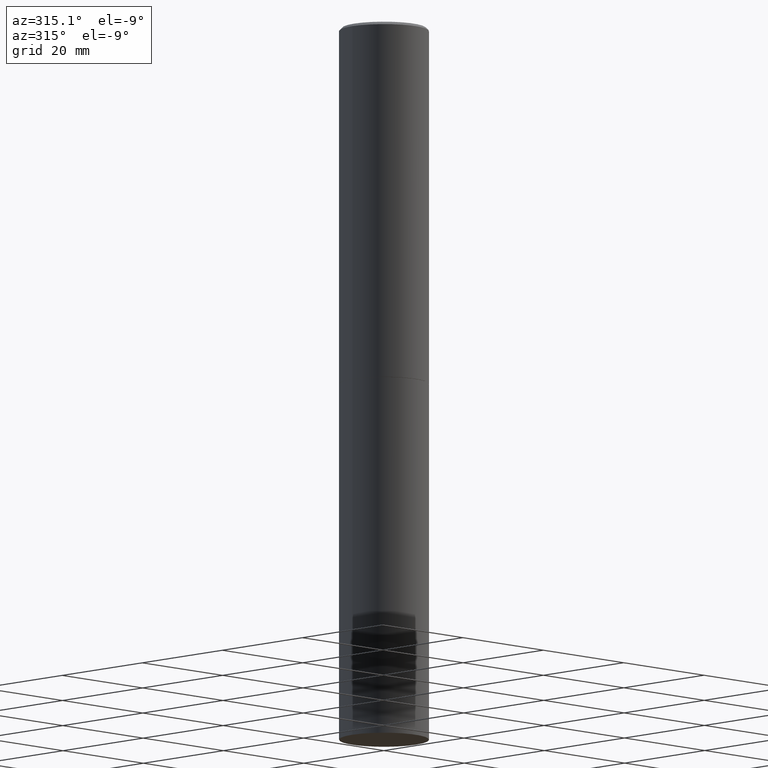
[diagram: clean part render]
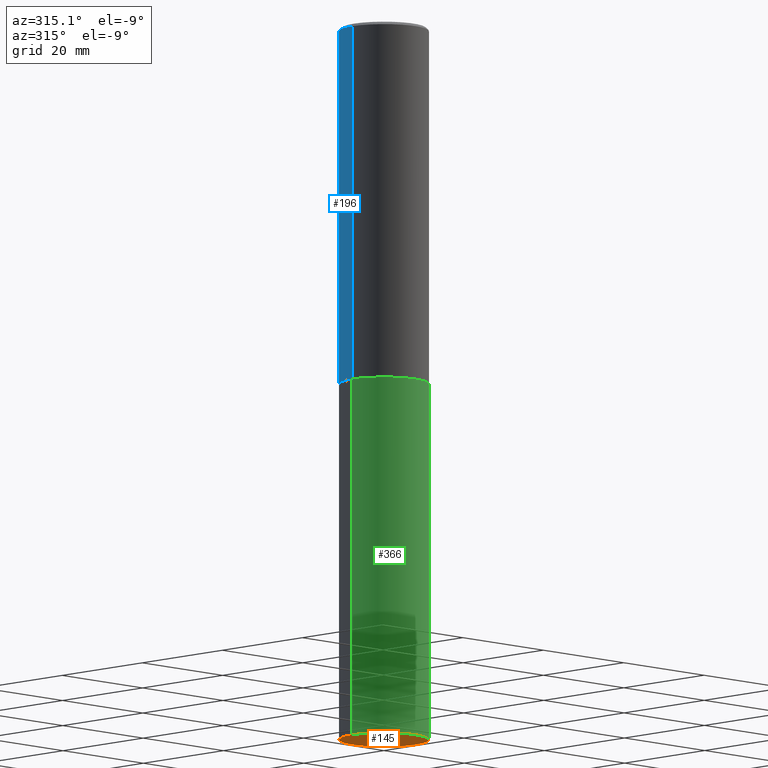
[diagram: same view with three faces highlighted in distinct colors, each labeled with its STEP entity id]
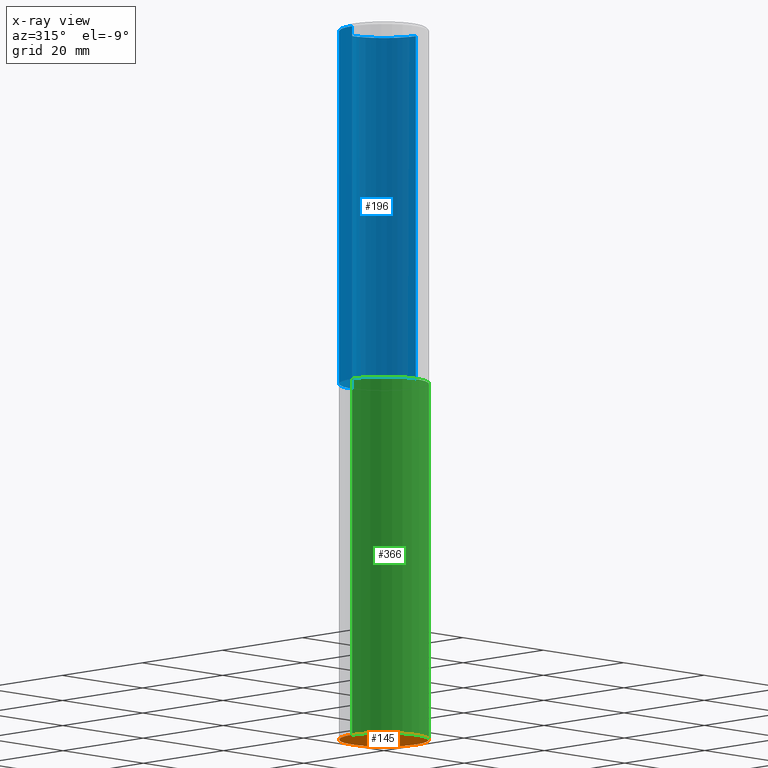
[diagram: x-ray of the same camera — body ghosted, the three highlighted faces saturated]
A machine part, auxiliary view with three faces highlighted in distinct colors.
The next image is the same camera in x-ray (body ghosted, the three faces saturated) — at least one of them is partly hidden behind the body in this view.
Their STEP definitions:

[orange] entity #145 — the highlighted planar face has unit normal (0, -0, -1).
#18 = CARTESIAN_POINT ( 'NONE',  ( 2.182175836777080620E-15, 0.3124999999999825140, -5.000000000000000888 ) ) ;
#41 = EDGE_CURVE ( 'NONE', #132, #164, #343, .T. ) ;
#49 = CARTESIAN_POINT ( 'NONE',  ( 1.222734403092568523E-28, -1.745740669421572989E-14, -5.000000000000000000 ) ) ;
#83 = ORIENTED_EDGE ( 'NONE', *, *, #283, .F. ) ;
#93 = DIRECTION ( 'NONE',  ( -2.445468806185136597E-29, 3.491481338843145583E-15, 1.000000000000000000 ) ) ;
#94 = CIRCLE ( 'NONE', #96, 0.3125000000000000000 ) ;
#95 = CARTESIAN_POINT ( 'NONE',  ( 0.3125000000000000000, -1.963958253099268981E-14, -5.000000000000000000 ) ) ;
#96 = AXIS2_PLACEMENT_3D ( 'NONE', #136, #229, #256 ) ;
#132 = VERTEX_POINT ( 'NONE', #149 ) ;
#136 = CARTESIAN_POINT ( 'NONE',  ( 1.222734403092568523E-28, -1.745740669421572989E-14, -5.000000000000000000 ) ) ;
#145 = ADVANCED_FACE ( 'NONE', ( #275 ), #265, .T. ) ;
#149 = CARTESIAN_POINT ( 'NONE',  ( -0.3125000000000000000, -1.087260897141148433E-14, -5.000000000000000000 ) ) ;
#159 = ORIENTED_EDGE ( 'NONE', *, *, #41, .F. ) ;
#164 = VERTEX_POINT ( 'NONE', #95 ) ;
#208 = DIRECTION ( 'NONE',  ( 1.000000000000000000, -6.982962677686269077E-15, 0.000000000000000000 ) ) ;
#212 = DIRECTION ( 'NONE',  ( 2.438088387897960049E-29, -3.491481338843145188E-15, -1.000000000000000000 ) ) ;
#229 = DIRECTION ( 'NONE',  ( -2.445468806185136597E-29, 3.491481338843145583E-15, 1.000000000000000000 ) ) ;
#256 = DIRECTION ( 'NONE',  ( 1.000000000000000000, -6.982962677686269077E-15, 0.000000000000000000 ) ) ;
#257 = AXIS2_PLACEMENT_3D ( 'NONE', #49, #93, #208 ) ;
#265 = PLANE ( 'NONE',  #327 ) ;
#275 = FACE_OUTER_BOUND ( 'NONE', #311, .T. ) ;
#283 = EDGE_CURVE ( 'NONE', #164, #132, #94, .T. ) ;
#311 = EDGE_LOOP ( 'NONE', ( #83, #159 ) ) ;
#323 = DIRECTION ( 'NONE',  ( -1.000000000000000000, 6.982962677686265922E-15, -4.876176775795935793E-29 ) ) ;
#327 = AXIS2_PLACEMENT_3D ( 'NONE', #18, #212, #323 ) ;
#343 = CIRCLE ( 'NONE', #257, 0.3125000000000000000 ) ;

[blue] entity #196 — the highlighted cylindrical surface (partial cylindrical patch) has radius 7.9375 mm, axis along (-0, 0, 1).
#4 = CIRCLE ( 'NONE', #175, 0.3124999999999997224 ) ;
#6 = EDGE_CURVE ( 'NONE', #114, #268, #324, .T. ) ;
#38 = VECTOR ( 'NONE', #320, 39.37007874015748143 ) ;
#48 = CARTESIAN_POINT ( 'NONE',  ( 6.111226546656659252E-29, -8.725211865769023513E-15, -2.499000000000000998 ) ) ;
#54 = EDGE_CURVE ( 'NONE', #79, #340, #316, .T. ) ;
#62 = CARTESIAN_POINT ( 'NONE',  ( 4.890937612370298557E-31, -6.982962677686327354E-17, -0.02000000000000010103 ) ) ;
#63 = CARTESIAN_POINT ( 'NONE',  ( -0.3124999999999998890, 2.220446049250312292E-15, -1.537167215704657391E-29 ) ) ;
#74 = ORIENTED_EDGE ( 'NONE', *, *, #6, .F. ) ;
#76 = DIRECTION ( 'NONE',  ( -2.445468806185136597E-29, 3.491481338843145583E-15, 1.000000000000000000 ) ) ;
#79 = VERTEX_POINT ( 'NONE', #118 ) ;
#104 = AXIS2_PLACEMENT_3D ( 'NONE', #290, #146, #224 ) ;
#114 = VERTEX_POINT ( 'NONE', #155 ) ;
#118 = CARTESIAN_POINT ( 'NONE',  ( -0.3125000000000000000, -2.177074697022629142E-15, -2.499000000000000998 ) ) ;
#121 = EDGE_CURVE ( 'NONE', #268, #340, #4, .T. ) ;
#126 = EDGE_LOOP ( 'NONE', ( #361, #137, #148, #74 ) ) ;
#133 = FACE_OUTER_BOUND ( 'NONE', #126, .T. ) ;
#135 = EDGE_CURVE ( 'NONE', #114, #79, #286, .T. ) ;
#137 = ORIENTED_EDGE ( 'NONE', *, *, #54, .T. ) ;
#146 = DIRECTION ( 'NONE',  ( -2.445468806185136597E-29, 3.491481338843145583E-15, 1.000000000000000000 ) ) ;
#148 = ORIENTED_EDGE ( 'NONE', *, *, #121, .F. ) ;
#151 = CARTESIAN_POINT ( 'NONE',  ( -0.3124999999999997224, 2.112346210000093077E-15, -0.02000000000000010103 ) ) ;
#152 = VECTOR ( 'NONE', #270, 39.37007874015748143 ) ;
#155 = CARTESIAN_POINT ( 'NONE',  ( 0.3125000000000000000, -1.090738770254598186E-14, -2.499000000000000998 ) ) ;
#175 = AXIS2_PLACEMENT_3D ( 'NONE', #62, #242, #255 ) ;
#178 = CYLINDRICAL_SURFACE ( 'NONE', #104, 0.3124999999999998890 ) ;
#182 = CARTESIAN_POINT ( 'NONE',  ( 0.3124999999999998890, -2.182175836776957558E-15, 1.523805242436229235E-29 ) ) ;
#186 = AXIS2_PLACEMENT_3D ( 'NONE', #48, #76, #191 ) ;
#191 = DIRECTION ( 'NONE',  ( 1.000000000000000000, -6.982962677686265133E-15, 0.000000000000000000 ) ) ;
#196 = ADVANCED_FACE ( 'NONE', ( #133 ), #178, .T. ) ;
#224 = DIRECTION ( 'NONE',  ( 1.000000000000000000, -6.982962677686266711E-15, 4.876176775795935232E-29 ) ) ;
#242 = DIRECTION ( 'NONE',  ( -2.445468806185136597E-29, 3.491481338843145583E-15, 1.000000000000000000 ) ) ;
#255 = DIRECTION ( 'NONE',  ( 1.000000000000000000, -6.982962677686266711E-15, 0.000000000000000000 ) ) ;
#268 = VERTEX_POINT ( 'NONE', #281 ) ;
#270 = DIRECTION ( 'NONE',  ( -2.445468806185136877E-29, 3.491481338843145188E-15, 1.000000000000000000 ) ) ;
#281 = CARTESIAN_POINT ( 'NONE',  ( 0.3124999999999997224, -2.213735251080464939E-15, -0.02000000000000010103 ) ) ;
#286 = CIRCLE ( 'NONE', #186, 0.3125000000000000000 ) ;
#290 = CARTESIAN_POINT ( 'NONE',  ( 0.000000000000000000, 0.000000000000000000, 0.000000000000000000 ) ) ;
#316 = LINE ( 'NONE', #63, #152 ) ;
#320 = DIRECTION ( 'NONE',  ( -2.445468806185136877E-29, 3.491481338843145188E-15, 1.000000000000000000 ) ) ;
#324 = LINE ( 'NONE', #182, #38 ) ;
#340 = VERTEX_POINT ( 'NONE', #151 ) ;
#361 = ORIENTED_EDGE ( 'NONE', *, *, #135, .T. ) ;

[green] entity #366 — the highlighted cylindrical surface (partial cylindrical patch) has radius 7.9375 mm, axis along (-0, 0, 1).
#7 = AXIS2_PLACEMENT_3D ( 'NONE', #20, #344, #215 ) ;
#16 = EDGE_CURVE ( 'NONE', #217, #214, #56, .T. ) ;
#20 = CARTESIAN_POINT ( 'NONE',  ( 0.000000000000000000, 0.000000000000000000, 0.000000000000000000 ) ) ;
#29 = AXIS2_PLACEMENT_3D ( 'NONE', #248, #321, #46 ) ;
#36 = EDGE_LOOP ( 'NONE', ( #99, #103, #250, #184 ) ) ;
#41 = EDGE_CURVE ( 'NONE', #132, #164, #343, .T. ) ;
#46 = DIRECTION ( 'NONE',  ( 1.000000000000000000, -6.982962677686265133E-15, 0.000000000000000000 ) ) ;
#49 = CARTESIAN_POINT ( 'NONE',  ( 1.222734403092568523E-28, -1.745740669421572989E-14, -5.000000000000000000 ) ) ;
#50 = CYLINDRICAL_SURFACE ( 'NONE', #7, 0.3125000000000000000 ) ;
#53 = CARTESIAN_POINT ( 'NONE',  ( 0.3125000000000000000, -1.091087918388482329E-14, -2.500000000000000000 ) ) ;
#56 = CIRCLE ( 'NONE', #29, 0.3125000000000000000 ) ;
#65 = EDGE_CURVE ( 'NONE', #164, #214, #179, .T. ) ;
#75 = DIRECTION ( 'NONE',  ( -2.445468806185136877E-29, 3.491481338843145188E-15, 1.000000000000000000 ) ) ;
#93 = DIRECTION ( 'NONE',  ( -2.445468806185136597E-29, 3.491481338843145583E-15, 1.000000000000000000 ) ) ;
#95 = CARTESIAN_POINT ( 'NONE',  ( 0.3125000000000000000, -1.963958253099268981E-14, -5.000000000000000000 ) ) ;
#99 = ORIENTED_EDGE ( 'NONE', *, *, #314, .F. ) ;
#103 = ORIENTED_EDGE ( 'NONE', *, *, #41, .T. ) ;
#132 = VERTEX_POINT ( 'NONE', #149 ) ;
#147 = DIRECTION ( 'NONE',  ( -2.445468806185136877E-29, 3.491481338843145188E-15, 1.000000000000000000 ) ) ;
#149 = CARTESIAN_POINT ( 'NONE',  ( -0.3125000000000000000, -1.087260897141148433E-14, -5.000000000000000000 ) ) ;
#164 = VERTEX_POINT ( 'NONE', #95 ) ;
#179 = LINE ( 'NONE', #291, #237 ) ;
#184 = ORIENTED_EDGE ( 'NONE', *, *, #16, .F. ) ;
#208 = DIRECTION ( 'NONE',  ( 1.000000000000000000, -6.982962677686269077E-15, 0.000000000000000000 ) ) ;
#214 = VERTEX_POINT ( 'NONE', #53 ) ;
#215 = DIRECTION ( 'NONE',  ( 1.000000000000000000, -6.982962677686266711E-15, 4.876176775795936353E-29 ) ) ;
#217 = VERTEX_POINT ( 'NONE', #362 ) ;
#237 = VECTOR ( 'NONE', #147, 39.37007874015748143 ) ;
#248 = CARTESIAN_POINT ( 'NONE',  ( 6.113672015462842613E-29, -8.728703347107864943E-15, -2.500000000000000000 ) ) ;
#250 = ORIENTED_EDGE ( 'NONE', *, *, #65, .T. ) ;
#257 = AXIS2_PLACEMENT_3D ( 'NONE', #49, #93, #208 ) ;
#273 = CARTESIAN_POINT ( 'NONE',  ( -0.3125000000000000000, 2.220446049250313081E-15, -1.537167215704658232E-29 ) ) ;
#291 = CARTESIAN_POINT ( 'NONE',  ( 0.3125000000000000000, -2.182175836776958347E-15, 1.523805242436230075E-29 ) ) ;
#314 = EDGE_CURVE ( 'NONE', #132, #217, #329, .T. ) ;
#318 = VECTOR ( 'NONE', #75, 39.37007874015748143 ) ;
#321 = DIRECTION ( 'NONE',  ( -2.445468806185136597E-29, 3.491481338843145583E-15, 1.000000000000000000 ) ) ;
#329 = LINE ( 'NONE', #273, #318 ) ;
#343 = CIRCLE ( 'NONE', #257, 0.3125000000000000000 ) ;
#344 = DIRECTION ( 'NONE',  ( -2.445468806185136597E-29, 3.491481338843145583E-15, 1.000000000000000000 ) ) ;
#347 = FACE_OUTER_BOUND ( 'NONE', #36, .T. ) ;
#362 = CARTESIAN_POINT ( 'NONE',  ( -0.3125000000000000000, -1.087260897141148433E-14, -2.500000000000000000 ) ) ;
#366 = ADVANCED_FACE ( 'NONE', ( #347 ), #50, .T. ) ;